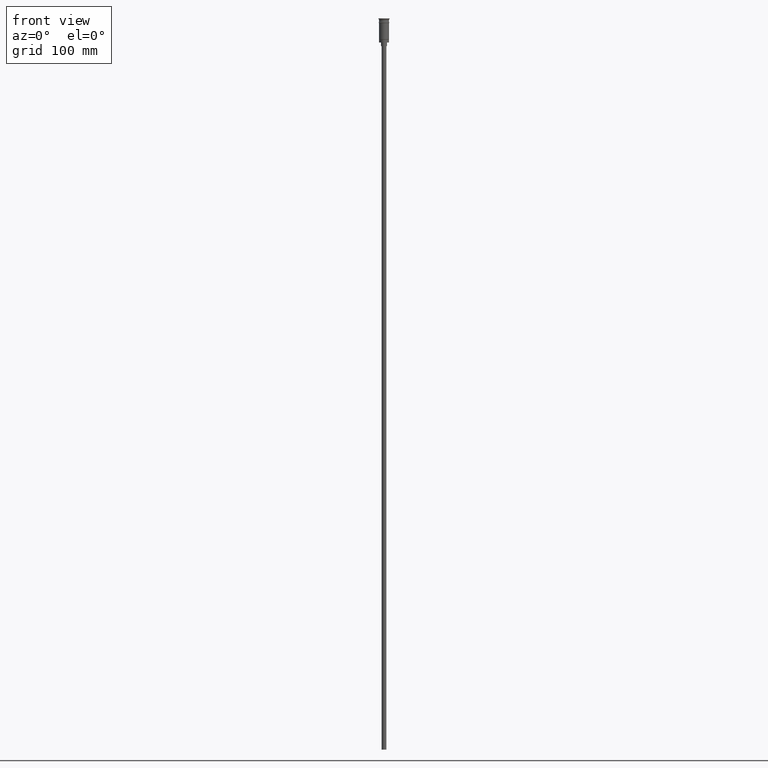
[diagram: clean part render]
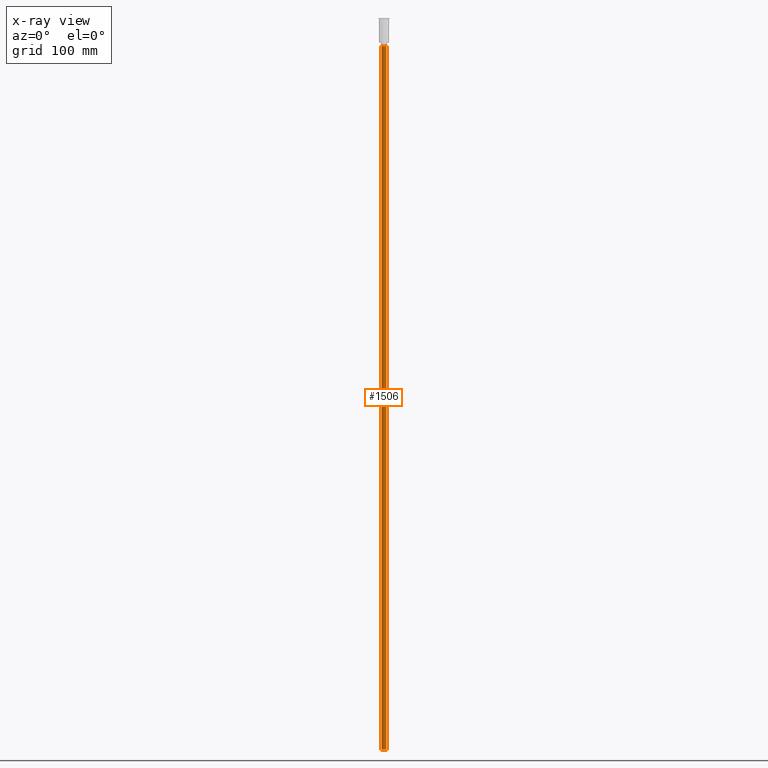
[diagram: x-ray — body ghosted, one internal face saturated and labeled with its STEP entity id]
A machine part, front view, then the same camera in x-ray: the body is ghosted and one INTERNAL B-rep face — a face not visible from any outside direction — is saturated and labeled: STEP entity #1506.
In plain terms, the highlighted cylindrical surface (edge-blend (fillet) strip) has radius 2 mm, axis along (-0, -0, 1).
Its self-contained STEP definition (entity closure, byte-faithful):
#20 = CARTESIAN_POINT ( 'NONE',  ( 0.000000000000000000, 0.000000000000000000, -23.49999999999999645 ) ) ;
#34 = DIRECTION ( 'NONE',  ( -1.000000000000000000, 0.000000000000000000, 0.000000000000000000 ) ) ;
#114 = EDGE_CURVE ( 'NONE', #1242, #1310, #882, .T. ) ;
#176 = CARTESIAN_POINT ( 'NONE',  ( 2.000000000000000000, 0.000000000000000000, -620.4999999999998863 ) ) ;
#186 = AXIS2_PLACEMENT_3D ( 'NONE', #689, #953, #1458 ) ;
#190 = CARTESIAN_POINT ( 'NONE',  ( -2.000000000000000000, 2.449293598294706414E-16, -23.49999999999999645 ) ) ;
#273 = ORIENTED_EDGE ( 'NONE', *, *, #646, .T. ) ;
#279 = ORIENTED_EDGE ( 'NONE', *, *, #364, .T. ) ;
#320 = AXIS2_PLACEMENT_3D ( 'NONE', #20, #1363, #34 ) ;
#341 = VERTEX_POINT ( 'NONE', #190 ) ;
#364 = EDGE_CURVE ( 'NONE', #1242, #1087, #671, .T. ) ;
#441 = CARTESIAN_POINT ( 'NONE',  ( -2.000000000000000000, 2.449293598294706414E-16, -620.4999999999998863 ) ) ;
#496 = ORIENTED_EDGE ( 'NONE', *, *, #114, .F. ) ;
#630 = DIRECTION ( 'NONE',  ( -0.000000000000000000, -0.000000000000000000, 1.000000000000000000 ) ) ;
#646 = EDGE_CURVE ( 'NONE', #1087, #341, #907, .T. ) ;
#671 = LINE ( 'NONE', #1540, #1240 ) ;
#689 = CARTESIAN_POINT ( 'NONE',  ( 0.000000000000000000, 0.000000000000000000, -620.4999999999998863 ) ) ;
#784 = LINE ( 'NONE', #1151, #1422 ) ;
#882 = CIRCLE ( 'NONE', #186, 2.000000000000000000 ) ;
#907 = CIRCLE ( 'NONE', #320, 2.000000000000000000 ) ;
#953 = DIRECTION ( 'NONE',  ( 0.000000000000000000, 0.000000000000000000, -1.000000000000000000 ) ) ;
#978 = DIRECTION ( 'NONE',  ( 1.000000000000000000, 0.000000000000000000, 0.000000000000000000 ) ) ;
#1087 = VERTEX_POINT ( 'NONE', #1492 ) ;
#1105 = CYLINDRICAL_SURFACE ( 'NONE', #1141, 2.000000000000000000 ) ;
#1141 = AXIS2_PLACEMENT_3D ( 'NONE', #1472, #630, #978 ) ;
#1151 = CARTESIAN_POINT ( 'NONE',  ( -2.000000000000000000, 2.449293598294706414E-16, -620.4999999999998863 ) ) ;
#1152 = ORIENTED_EDGE ( 'NONE', *, *, #1161, .F. ) ;
#1161 = EDGE_CURVE ( 'NONE', #1310, #341, #784, .T. ) ;
#1178 = DIRECTION ( 'NONE',  ( -0.000000000000000000, -0.000000000000000000, 1.000000000000000000 ) ) ;
#1236 = FACE_OUTER_BOUND ( 'NONE', #1326, .T. ) ;
#1240 = VECTOR ( 'NONE', #1178, 1000.000000000000000 ) ;
#1242 = VERTEX_POINT ( 'NONE', #176 ) ;
#1310 = VERTEX_POINT ( 'NONE', #441 ) ;
#1326 = EDGE_LOOP ( 'NONE', ( #1152, #496, #279, #273 ) ) ;
#1363 = DIRECTION ( 'NONE',  ( 0.000000000000000000, 0.000000000000000000, -1.000000000000000000 ) ) ;
#1398 = DIRECTION ( 'NONE',  ( -0.000000000000000000, -0.000000000000000000, 1.000000000000000000 ) ) ;
#1422 = VECTOR ( 'NONE', #1398, 1000.000000000000000 ) ;
#1458 = DIRECTION ( 'NONE',  ( -1.000000000000000000, 0.000000000000000000, 0.000000000000000000 ) ) ;
#1472 = CARTESIAN_POINT ( 'NONE',  ( 0.000000000000000000, 0.000000000000000000, -620.4999999999998863 ) ) ;
#1492 = CARTESIAN_POINT ( 'NONE',  ( 2.000000000000000000, 0.000000000000000000, -23.49999999999999645 ) ) ;
#1506 = ADVANCED_FACE ( 'NONE', ( #1236 ), #1105, .T. ) ;
#1540 = CARTESIAN_POINT ( 'NONE',  ( 2.000000000000000000, 0.000000000000000000, -620.4999999999998863 ) ) ;